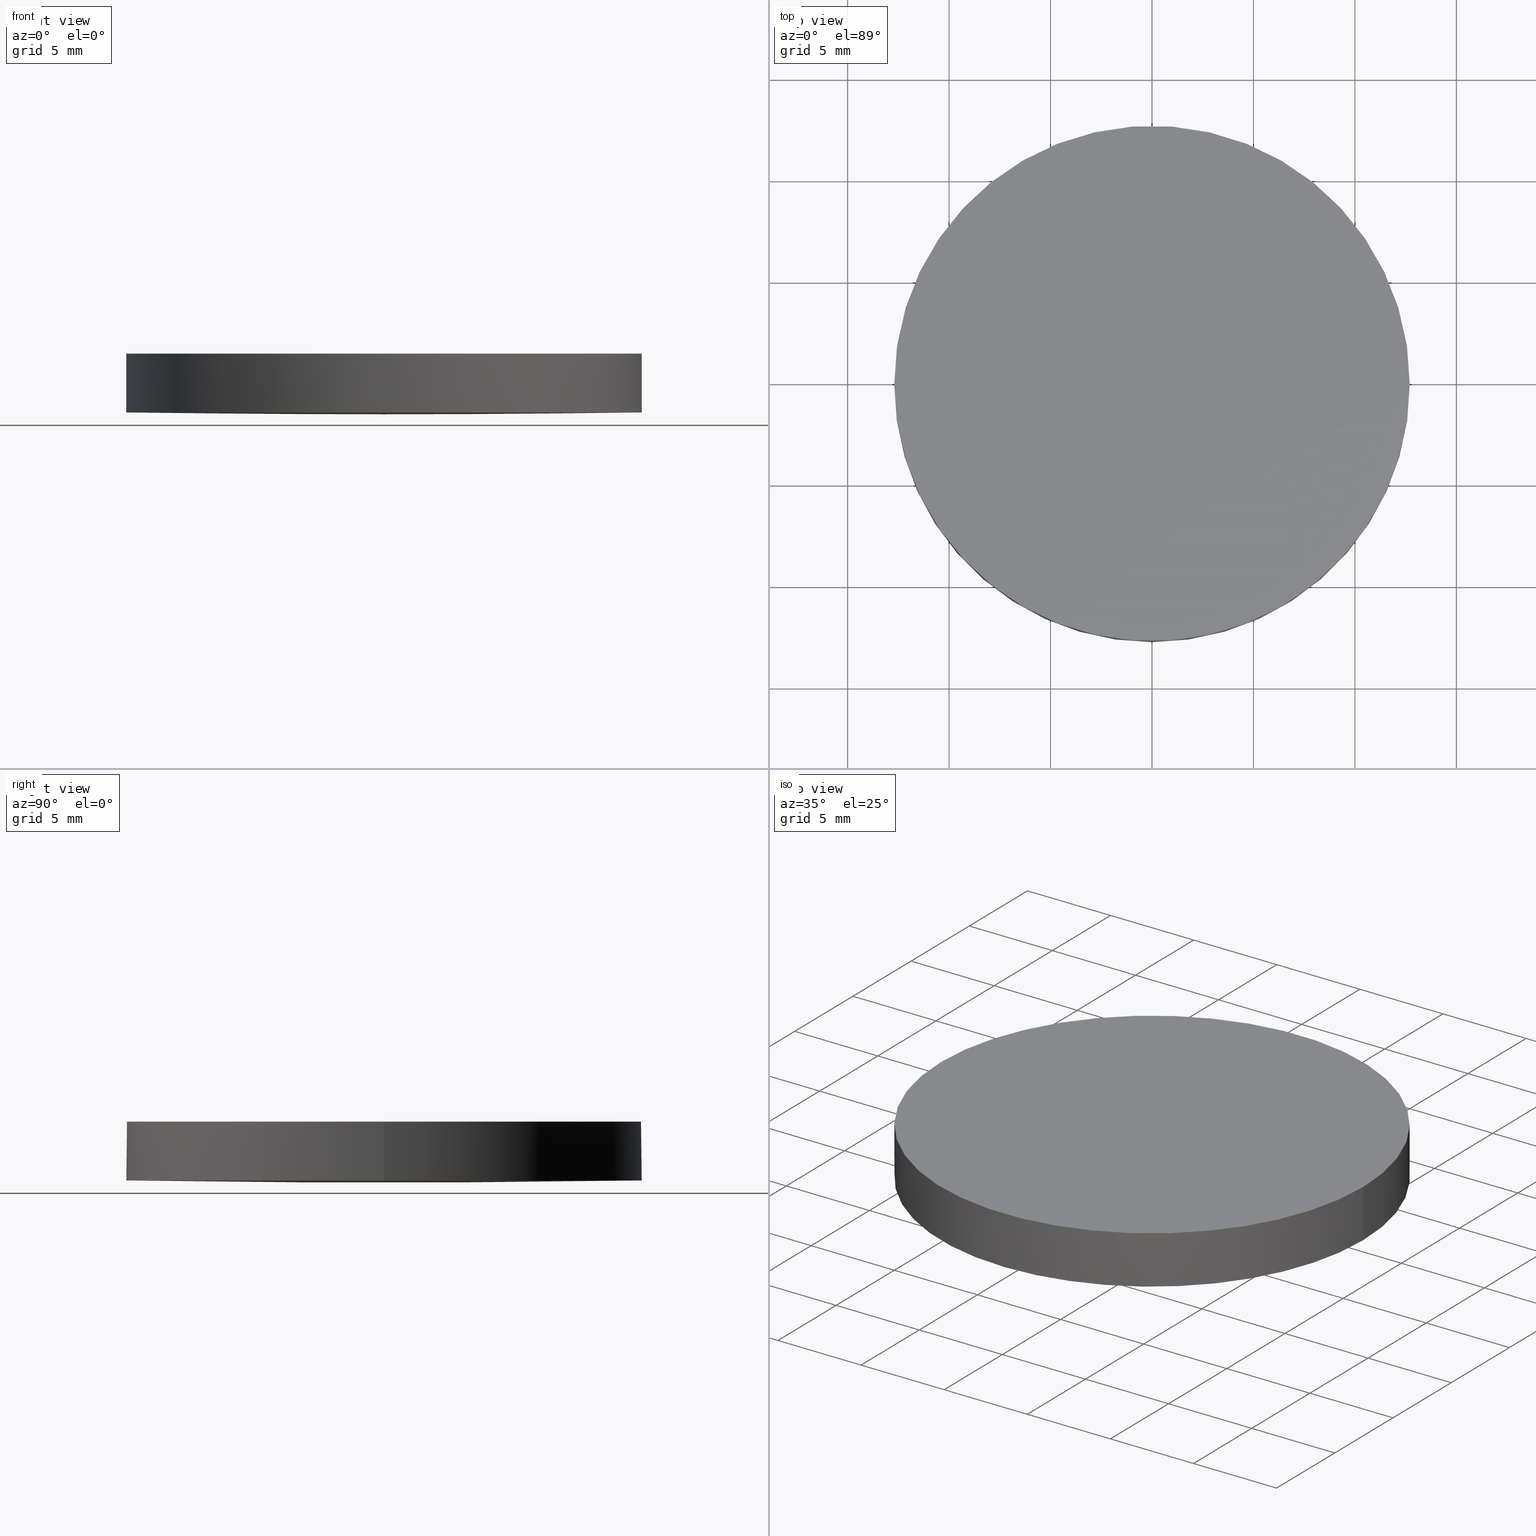
[diagram: canonical four-view strip — front | top / right | iso, engineering-drawing reading convention]
A machine part, canonical four-view strip (front | top / right | iso — engineering-drawing reading convention). The complete STEP part file that produces these views, byte-faithful:
ISO-10303-21;
HEADER;
FILE_DESCRIPTION (( 'STEP AP203' ),
    '1' );
FILE_NAME ('110-0267E BK7 pl-cx 25.4 F1500.STEP',
    '2018-12-21T06:45:29',
    ( '' ),
    ( '' ),
    'SwSTEP 2.0',
    'SolidWorks 2017',
    '' );
FILE_SCHEMA (( 'CONFIG_CONTROL_DESIGN' ));
ENDSEC;

DATA;
#1 = VECTOR ( 'NONE', #207, 1000.000000000000000 ) ;
#2 = CARTESIAN_POINT ( 'NONE',  ( 4.996003610813200500E-016, 2.442490654175340100E-015, 0.1036637186161520100 ) ) ;
#3 = CARTESIAN_POINT ( 'NONE',  ( -12.69999999999999900, 3.997792089092478900E-015, 3.000000000000000000 ) ) ;
#4 = AXIS2_PLACEMENT_3D ( 'NONE', #105, #234, #82 ) ;
#5 = CARTESIAN_POINT ( 'NONE',  ( -6.175615574477432200E-013, 4.284518518352576200, -0.03539205925734099200 ) ) ;
#6 = DIRECTION ( 'NONE',  ( 1.000000000000000000, 0.0000000000000000000, 0.0000000000000000000 ) ) ;
#7 = DIRECTION ( 'NONE',  ( 0.0000000000000000000, 0.0000000000000000000, 1.000000000000000000 ) ) ;
#8 = CALENDAR_DATE ( 2018, 21, 12 ) ;
#9 = ORIENTED_EDGE ( 'NONE', *, *, #86, .F. ) ;
#10 = CARTESIAN_POINT ( 'NONE',  ( 12.69999999999999900, 2.442490654175340100E-015, 0.1036637186161520100 ) ) ;
#11 = AXIS2_PLACEMENT_3D ( 'NONE', #154, #41, #174 ) ;
#12 = DIRECTION ( 'NONE',  ( -0.0000000000000000000, -0.0000000000000000000, -1.000000000000000000 ) ) ;
#13 = DIRECTION ( 'NONE',  ( -2.988028379211528500E-016, -1.000000000000000000, 5.708087530206460600E-016 ) ) ;
#14 = DATE_AND_TIME ( #83, #183 ) ;
#15 = MECHANICAL_CONTEXT ( 'NONE', #232, 'mechanical' ) ;
#16 = ORIENTED_EDGE ( 'NONE', *, *, #113, .T. ) ;
#17 = APPROVAL ( #32, 'UNSPECIFIED' ) ;
#18 = EDGE_CURVE ( 'NONE', #194, #140, #191, .T. ) ;
#19 = CIRCLE ( 'NONE', #221, 12.69999999999999900 ) ;
#20 = DIRECTION ( 'NONE',  ( -0.0000000000000000000, -0.0000000000000000000, -1.000000000000000000 ) ) ;
#21 = CARTESIAN_POINT ( 'NONE',  ( -12.77677437270932800, 4.284518518352578900, 0.06952410036593643900 ) ) ;
#22 = EDGE_CURVE ( 'NONE', #67, #57, #19, .T. ) ;
#23 = CYLINDRICAL_SURFACE ( 'NONE', #11, 12.69999999999999900 ) ;
#24 = ORIENTED_EDGE ( 'NONE', *, *, #18, .F. ) ;
#25 = DIRECTION ( 'NONE',  ( 1.000000000000000000, 0.0000000000000000000, 0.0000000000000000000 ) ) ;
#26 = PLANE ( 'NONE',  #198 ) ;
#27 = CARTESIAN_POINT ( 'NONE',  ( -4.270027771401412000E-013, 4.284518518352576200, -0.03539205925730160000 ) ) ;
#28 = CARTESIAN_POINT ( 'NONE',  ( 8.518184611386091700, -4.284518518352525600, -0.0004192200360987136900 ) ) ;
#29 = CARTESIAN_POINT ( 'NONE',  ( 0.0000000000000000000, 0.0000000000000000000, 0.0000000000000000000 ) ) ;
#30 = DATE_AND_TIME ( #8, #54 ) ;
#31 = PERSON_AND_ORGANIZATION_ROLE ( 'creator' ) ;
#32 = APPROVAL_STATUS ( 'not_yet_approved' ) ;
#33 = ORIENTED_EDGE ( 'NONE', *, *, #22, .F. ) ;
#34 = AXIS2_PLACEMENT_3D ( 'NONE', #77, #228, #178 ) ;
#35 = DATE_AND_TIME ( #74, #226 ) ;
#36 = FACE_OUTER_BOUND ( 'NONE', #216, .T. ) ;
#37 = CC_DESIGN_APPROVAL ( #17, ( #61 ) ) ;
#38 = ORIENTED_EDGE ( 'NONE', *, *, #190, .T. ) ;
#39 = CARTESIAN_POINT ( 'NONE',  ( -8.516634782020315000, -12.85238621723088000, 0.1411329946494032100 ) ) ;
#40 = APPROVAL_PERSON_ORGANIZATION ( #87, #17, #127 ) ;
#41 = DIRECTION ( 'NONE',  ( 0.0000000000000000000, 0.0000000000000000000, 1.000000000000000000 ) ) ;
#42 = CARTESIAN_POINT ( 'NONE',  ( 4.259164099128814700, -4.284518518352523800, -0.03539205925730210700 ) ) ;
#43 = APPROVAL_DATE_TIME ( #98, #17 ) ;
#44 = CARTESIAN_POINT ( 'NONE',  ( 8.516634782019604400, -12.85238621723088300, 0.1411329946493914700 ) ) ;
#45 = CARTESIAN_POINT ( 'NONE',  ( 4.259164099128817300, 4.284518518352576200, -0.03539205925730270300 ) ) ;
#46 = PERSON_AND_ORGANIZATION ( #182, #201 ) ;
#47 = AXIS2_PLACEMENT_3D ( 'NONE', #29, #187, #212 ) ;
#48 = PRODUCT ( '110-0267E BK7 pl-cx 25.4 F1500', '110-0267E BK7 pl-cx 25.4 F1500', '', ( #15 ) ) ;
#49 = FACE_OUTER_BOUND ( 'NONE', #158, .T. ) ;
#50 = ORIENTED_EDGE ( 'NONE', *, *, #149, .F. ) ;
#51 = DATE_AND_TIME ( #167, #173 ) ;
#52 = CIRCLE ( 'NONE', #128, 778.0000000000000000 ) ;
#53 =( GEOMETRIC_REPRESENTATION_CONTEXT ( 3 ) GLOBAL_UNCERTAINTY_ASSIGNED_CONTEXT ( ( #185 ) ) GLOBAL_UNIT_ASSIGNED_CONTEXT ( ( #102, #63, #200 ) ) REPRESENTATION_CONTEXT ( 'NONE', 'WORKASPACE' ) );
#54 = LOCAL_TIME ( 8, 45, 29.00000000000000000, #64 ) ;
#55 = ORIENTED_EDGE ( 'NONE', *, *, #113, .F. ) ;
#56 = CARTESIAN_POINT ( 'NONE',  ( -8.518184611386796900, 4.284518518352578900, -0.0004192200360875735100 ) ) ;
#57 = VERTEX_POINT ( 'NONE', #94 ) ;
#58 = CARTESIAN_POINT ( 'NONE',  ( 0.0000000000000000000, 26.11199999999999800, 3.000000000000000000 ) ) ;
#59 = CC_DESIGN_PERSON_AND_ORGANIZATION_ASSIGNMENT ( #170, #31, ( #61 ) ) ;
#60 = CARTESIAN_POINT ( 'NONE',  ( -4.244522995091619500E-013, 12.70000000000398900, 0.1036637186161473300 ) ) ;
#61 = PRODUCT_DEFINITION ( 'UNKNOWN', '', #139, #180 ) ;
#62 = PERSON_AND_ORGANIZATION_ROLE ( 'classification_officer' ) ;
#63 =( NAMED_UNIT ( * ) PLANE_ANGLE_UNIT ( ) SI_UNIT ( $, .RADIAN. ) );
#64 = COORDINATED_UNIVERSAL_TIME_OFFSET ( 2, 0, .AHEAD. ) ;
#65 = APPROVAL_ROLE ( '' ) ;
#66 = ORIENTED_EDGE ( 'NONE', *, *, #115, .T. ) ;
#67 = VERTEX_POINT ( 'NONE', #3 ) ;
#68 = MANIFOLD_SOLID_BREP ( 'Imported1', #222 ) ;
#69 = CC_DESIGN_DATE_AND_TIME_ASSIGNMENT ( #51, #163, ( #61 ) ) ;
#70 = COORDINATED_UNIVERSAL_TIME_OFFSET ( 2, 0, .AHEAD. ) ;
#71 = CARTESIAN_POINT ( 'NONE',  ( -4.258389171384096400, -12.85238621723088000, 0.1061665185132137200 ) ) ;
#72 = PRODUCT_RELATED_PRODUCT_CATEGORY ( 'detail', '', ( #48 ) ) ;
#73 = CARTESIAN_POINT ( 'NONE',  ( 12.69999999999999900, 2.442490654175340100E-015, 0.1036637186161520100 ) ) ;
#74 = CALENDAR_DATE ( 2018, 21, 12 ) ;
#75 = FACE_OUTER_BOUND ( 'NONE', #208, .T. ) ;
#76 = DIRECTION ( 'NONE',  ( -0.0000000000000000000, -0.0000000000000000000, -1.000000000000000000 ) ) ;
#77 = CARTESIAN_POINT ( 'NONE',  ( 4.996003610813200500E-016, 2.442490654175340100E-015, 3.000000000000000000 ) ) ;
#78 = CARTESIAN_POINT ( 'NONE',  ( -12.69999999999999900, 3.997792089092478900E-015, 0.1036637186161520100 ) ) ;
#79 = CIRCLE ( 'NONE', #4, 12.69999999999999900 ) ;
#80 = CARTESIAN_POINT ( 'NONE',  ( -4.258389171384089300, 12.85238621723093600, 0.1061665185132137400 ) ) ;
#81 = ADVANCED_FACE ( 'NONE', ( #75 ), #129, .T. ) ;
#82 = DIRECTION ( 'NONE',  ( 1.000000000000000000, 0.0000000000000000000, 0.0000000000000000000 ) ) ;
#83 = CALENDAR_DATE ( 2018, 21, 12 ) ;
#84 = ORIENTED_EDGE ( 'NONE', *, *, #86, .T. ) ;
#85 = ORIENTED_EDGE ( 'NONE', *, *, #190, .F. ) ;
#86 = EDGE_CURVE ( 'NONE', #220, #57, #179, .T. ) ;
#87 = PERSON_AND_ORGANIZATION ( #182, #201 ) ;
#88 = CARTESIAN_POINT ( 'NONE',  ( -12.77677437270933000, -4.284518518352518500, 0.06952410036593703600 ) ) ;
#89 = AXIS2_PLACEMENT_3D ( 'NONE', #116, #172, #156 ) ;
#90 = CARTESIAN_POINT ( 'NONE',  ( -4.259164099129693100, -4.284518518352522100, -0.03539205925733825800 ) ) ;
#91 = SHAPE_DEFINITION_REPRESENTATION ( #148, #137 ) ;
#92 = DIRECTION ( 'NONE',  ( 1.000000000000000000, 0.0000000000000000000, 0.0000000000000000000 ) ) ;
#93 = CC_DESIGN_PERSON_AND_ORGANIZATION_ASSIGNMENT ( #155, #62, ( #205 ) ) ;
#94 = CARTESIAN_POINT ( 'NONE',  ( 12.69999999999999900, 2.442490654175340100E-015, 3.000000000000000000 ) ) ;
#95 = ADVANCED_FACE ( 'NONE', ( #36 ), #23, .T. ) ;
#96 = ADVANCED_FACE ( 'NONE', ( #143 ), #130, .T. ) ;
#97 = CARTESIAN_POINT ( 'NONE',  ( 12.77677437270879500, 4.284518518352572700, 0.06952410036592707200 ) ) ;
#98 = DATE_AND_TIME ( #233, #235 ) ;
#99 = CARTESIAN_POINT ( 'NONE',  ( 8.516634782019611500, 12.85238621723093300, 0.1411329946493914700 ) ) ;
#100 = DIRECTION ( 'NONE',  ( 0.0000000000000000000, 0.0000000000000000000, 1.000000000000000000 ) ) ;
#101 = PERSON_AND_ORGANIZATION ( #182, #201 ) ;
#102 =( LENGTH_UNIT ( ) NAMED_UNIT ( * ) SI_UNIT ( .MILLI., .METRE. ) );
#103 = CIRCLE ( 'NONE', #109, 12.69999999999999900 ) ;
#104 = AXIS2_PLACEMENT_3D ( 'NONE', #2, #20, #92 ) ;
#105 = CARTESIAN_POINT ( 'NONE',  ( 4.996003610813200500E-016, 2.442490654175340100E-015, 0.1036637186161520100 ) ) ;
#106 = APPLICATION_PROTOCOL_DEFINITION ( 'international standard', 'config_control_design', 1994, #186 ) ;
#107 = APPROVAL_DATE_TIME ( #14, #153 ) ;
#108 = LINE ( 'NONE', #195, #229 ) ;
#109 = AXIS2_PLACEMENT_3D ( 'NONE', #121, #12, #177 ) ;
#110 = COORDINATED_UNIVERSAL_TIME_OFFSET ( 2, 0, .AHEAD. ) ;
#111 = ORIENTED_EDGE ( 'NONE', *, *, #18, .T. ) ;
#112 = CC_DESIGN_DATE_AND_TIME_ASSIGNMENT ( #35, #162, ( #205 ) ) ;
#113 = EDGE_CURVE ( 'NONE', #194, #67, #108, .T. ) ;
#114 = CARTESIAN_POINT ( 'NONE',  ( -4.259164099129691300, 4.284518518352578000, -0.03539205925733885500 ) ) ;
#115 = EDGE_CURVE ( 'NONE', #140, #220, #103, .T. ) ;
#116 = CARTESIAN_POINT ( 'NONE',  ( 4.996003610813200500E-016, 2.442490654175340100E-015, 0.1036637186161520100 ) ) ;
#117 = DIRECTION ( 'NONE',  ( -0.0000000000000000000, -0.0000000000000000000, -1.000000000000000000 ) ) ;
#118 = CARTESIAN_POINT ( 'NONE',  ( 4.258389171383220700, 12.85238621723093300, 0.1061665185132499000 ) ) ;
#119 = DIRECTION ( 'NONE',  ( 1.000000000000000000, 0.0000000000000000000, -0.0000000000000000000 ) ) ;
#120 = CARTESIAN_POINT ( 'NONE',  ( 4.258389171383212700, -12.85238621723088300, 0.1061665185132499000 ) ) ;
#121 = CARTESIAN_POINT ( 'NONE',  ( 4.996003610813200500E-016, 2.442490654175340100E-015, 0.1036637186161520100 ) ) ;
#122 = PERSON_AND_ORGANIZATION_ROLE ( 'design_supplier' ) ;
#123 = APPROVAL ( #144, 'UNSPECIFIED' ) ;
#124 = PERSON_AND_ORGANIZATION_ROLE ( 'creator' ) ;
#125 = ORIENTED_EDGE ( 'NONE', *, *, #231, .T. ) ;
#126 = VERTEX_POINT ( 'NONE', #204 ) ;
#127 = APPROVAL_ROLE ( '' ) ;
#128 = AXIS2_PLACEMENT_3D ( 'NONE', #165, #211, #13 ) ;
#129 = CYLINDRICAL_SURFACE ( 'NONE', #89, 12.69999999999999900 ) ;
#130 =( BOUNDED_SURFACE ( )  B_SPLINE_SURFACE ( 3, 3, ( 
 ( #193, #39, #71, #224 ),
 ( #88, #206, #90, #132 ),
 ( #21, #56, #114, #5 ),
 ( #133, #159, #80, #196 ) ),
 .UNSPECIFIED., .F., .F., .T. ) 
 B_SPLINE_SURFACE_WITH_KNOTS ( ( 4, 4 ),
 ( 4, 4 ),
 ( 0.0000000000000000000, 1.000000000000000000 ),
 ( 0.0000000000000000000, 1.000000000000000000 ),
 .UNSPECIFIED. ) 
 GEOMETRIC_REPRESENTATION_ITEM ( )  RATIONAL_B_SPLINE_SURFACE ( (
 ( 1.000000000000000000, 0.9999775250309488300, 0.9999775250309488300, 1.000000000000000000),
 ( 0.9999090261195259200, 0.9998865531951098800, 0.9998865531951098800, 0.9999090261195259200),
 ( 0.9999090261195259200, 0.9998865531951098800, 0.9998865531951098800, 0.9999090261195259200),
 ( 1.000000000000000000, 0.9999775250309488300, 0.9999775250309488300, 1.000000000000000000) ) ) 
 REPRESENTATION_ITEM ( '' )  SURFACE ( )  );
#131 = ORIENTED_EDGE ( 'NONE', *, *, #169, .F. ) ;
#132 = CARTESIAN_POINT ( 'NONE',  ( -6.192962809237201300E-013, -4.284518518352522100, -0.03539205925734039600 ) ) ;
#133 = CARTESIAN_POINT ( 'NONE',  ( -12.77444972009434900, 12.85238621723093600, 0.2110635893103340900 ) ) ;
#134 = CC_DESIGN_SECURITY_CLASSIFICATION ( #205, ( #139 ) ) ;
#135 = ADVANCED_FACE ( 'NONE', ( #171 ), #26, .T. ) ;
#136 = EDGE_LOOP ( 'NONE', ( #188, #168, #111 ) ) ;
#137 = ADVANCED_BREP_SHAPE_REPRESENTATION ( '110-0267E BK7 pl-cx 25.4 F1500', ( #68, #47 ), #53 ) ;
#138 = CARTESIAN_POINT ( 'NONE',  ( 12.77444972009382200, 12.85238621723092900, 0.2110635893103247100 ) ) ;
#139 = PRODUCT_DEFINITION_FORMATION_WITH_SPECIFIED_SOURCE ( 'ANY', '', #48, .NOT_KNOWN. ) ;
#140 = VERTEX_POINT ( 'NONE', #60 ) ;
#141 = CARTESIAN_POINT ( 'NONE',  ( -4.295632297249600500E-013, -4.284518518352522100, -0.03539205925730100300 ) ) ;
#142 = CARTESIAN_POINT ( 'NONE',  ( 12.77444972009381500, -12.85238621723088300, 0.2110635893103247100 ) ) ;
#143 = FACE_OUTER_BOUND ( 'NONE', #136, .T. ) ;
#144 = APPROVAL_STATUS ( 'not_yet_approved' ) ;
#145 = PERSON_AND_ORGANIZATION_ROLE ( 'design_owner' ) ;
#146 = CIRCLE ( 'NONE', #213, 12.69999999999999900 ) ;
#147 = CC_DESIGN_APPROVAL ( #123, ( #205 ) ) ;
#148 = PRODUCT_DEFINITION_SHAPE ( 'NONE', 'NONE',  #61 ) ;
#149 = EDGE_CURVE ( 'NONE', #126, #194, #146, .T. ) ;
#150 = PERSON_AND_ORGANIZATION ( #182, #201 ) ;
#151 = APPROVAL_DATE_TIME ( #30, #123 ) ;
#152 = PERSON_AND_ORGANIZATION ( #182, #201 ) ;
#153 = APPROVAL ( #218, 'UNSPECIFIED' ) ;
#154 = CARTESIAN_POINT ( 'NONE',  ( 4.996003610813200500E-016, 2.442490654175340100E-015, 0.1036637186161520100 ) ) ;
#155 = PERSON_AND_ORGANIZATION ( #182, #201 ) ;
#156 = DIRECTION ( 'NONE',  ( 1.000000000000000000, 0.0000000000000000000, 0.0000000000000000000 ) ) ;
#157 = PERSON_AND_ORGANIZATION ( #182, #201 ) ;
#158 = EDGE_LOOP ( 'NONE', ( #38, #125, #66 ) ) ;
#159 = CARTESIAN_POINT ( 'NONE',  ( -8.516634782020309700, 12.85238621723093600, 0.1411329946494032100 ) ) ;
#160 = CARTESIAN_POINT ( 'NONE',  ( 12.77677437270879300, -4.284518518352525600, 0.06952410036592766900 ) ) ;
#161 = CARTESIAN_POINT ( 'NONE',  ( 8.518184611386091700, 4.284518518352574500, -0.0004192200360992964500 ) ) ;
#162 = DATE_TIME_ROLE ( 'classification_date' ) ;
#163 = DATE_TIME_ROLE ( 'creation_date' ) ;
#164 = CIRCLE ( 'NONE', #34, 12.69999999999999900 ) ;
#165 = CARTESIAN_POINT ( 'NONE',  ( -2.273736754432320100E-013, 0.0000000000000000000, 778.0000000000000000 ) ) ;
#166 = CC_DESIGN_PERSON_AND_ORGANIZATION_ASSIGNMENT ( #152, #145, ( #48 ) ) ;
#167 = CALENDAR_DATE ( 2018, 21, 12 ) ;
#168 = ORIENTED_EDGE ( 'NONE', *, *, #149, .T. ) ;
#169 = EDGE_CURVE ( 'NONE', #57, #67, #164, .T. ) ;
#170 = PERSON_AND_ORGANIZATION ( #182, #201 ) ;
#171 = FACE_OUTER_BOUND ( 'NONE', #223, .T. ) ;
#172 = DIRECTION ( 'NONE',  ( 0.0000000000000000000, 0.0000000000000000000, 1.000000000000000000 ) ) ;
#173 = LOCAL_TIME ( 8, 45, 29.00000000000000000, #70 ) ;
#174 = DIRECTION ( 'NONE',  ( 1.000000000000000000, 0.0000000000000000000, 0.0000000000000000000 ) ) ;
#175 = ADVANCED_FACE ( 'NONE', ( #49 ), #230, .T. ) ;
#176 = ORIENTED_EDGE ( 'NONE', *, *, #22, .T. ) ;
#177 = DIRECTION ( 'NONE',  ( 1.000000000000000000, -8.881784197001252300E-016, 0.0000000000000000000 ) ) ;
#178 = DIRECTION ( 'NONE',  ( 1.000000000000000000, 0.0000000000000000000, 0.0000000000000000000 ) ) ;
#179 = LINE ( 'NONE', #73, #1 ) ;
#180 = DESIGN_CONTEXT ( 'detailed design', #186, 'design' ) ;
#181 = CARTESIAN_POINT ( 'NONE',  ( -4.244061197858275200E-013, 12.85238621723093300, 0.1061665185132509800 ) ) ;
#182 = PERSON ( 'UNSPECIFIED', 'UNSPECIFIED', 'UNSPECIFIED', ('UNSPECIFIED'), ('UNSPECIFIED'), ('UNSPECIFIED') ) ;
#183 = LOCAL_TIME ( 8, 45, 29.00000000000000000, #215 ) ;
#184 = ORIENTED_EDGE ( 'NONE', *, *, #169, .T. ) ;
#185 = UNCERTAINTY_MEASURE_WITH_UNIT (LENGTH_MEASURE( 1.000000000000000100E-005 ), #102, 'distance_accuracy_value', 'NONE');
#186 = APPLICATION_CONTEXT ( 'configuration controlled 3d designs of mechanical parts and assemblies' ) ;
#187 = DIRECTION ( 'NONE',  ( 0.0000000000000000000, 0.0000000000000000000, 1.000000000000000000 ) ) ;
#188 = ORIENTED_EDGE ( 'NONE', *, *, #231, .F. ) ;
#189 = CC_DESIGN_APPROVAL ( #153, ( #139 ) ) ;
#190 = EDGE_CURVE ( 'NONE', #220, #126, #79, .T. ) ;
#191 = CIRCLE ( 'NONE', #104, 12.69999999999999900 ) ;
#192 = COORDINATED_UNIVERSAL_TIME_OFFSET ( 2, 0, .AHEAD. ) ;
#193 = CARTESIAN_POINT ( 'NONE',  ( -12.77444972009435600, -12.85238621723087600, 0.2110635893103340900 ) ) ;
#194 = VERTEX_POINT ( 'NONE', #78 ) ;
#195 = CARTESIAN_POINT ( 'NONE',  ( -12.69999999999999900, 3.997792089092478900E-015, 0.1036637186161520100 ) ) ;
#196 = CARTESIAN_POINT ( 'NONE',  ( -6.140921104957897100E-013, 12.85238621723093300, 0.1061665185132116100 ) ) ;
#197 = CC_DESIGN_PERSON_AND_ORGANIZATION_ASSIGNMENT ( #46, #124, ( #139 ) ) ;
#198 = AXIS2_PLACEMENT_3D ( 'NONE', #58, #7, #119 ) ;
#199 = SECURITY_CLASSIFICATION_LEVEL ( 'unclassified' ) ;
#200 =( NAMED_UNIT ( * ) SI_UNIT ( $, .STERADIAN. ) SOLID_ANGLE_UNIT ( ) );
#201 = ORGANIZATION ( 'UNSPECIFIED', 'UNSPECIFIED', '' ) ;
#202 = ORIENTED_EDGE ( 'NONE', *, *, #115, .F. ) ;
#203 = APPROVAL_PERSON_ORGANIZATION ( #157, #153, #217 ) ;
#204 = CARTESIAN_POINT ( 'NONE',  ( -4.320418915923616000E-013, -12.70000000000398900, 0.1036637186161473300 ) ) ;
#205 = SECURITY_CLASSIFICATION ( '', '', #199 ) ;
#206 = CARTESIAN_POINT ( 'NONE',  ( -8.518184611386798700, -4.284518518352521200, -0.0004192200360869771400 ) ) ;
#207 = DIRECTION ( 'NONE',  ( 0.0000000000000000000, 0.0000000000000000000, 1.000000000000000000 ) ) ;
#208 = EDGE_LOOP ( 'NONE', ( #24, #16, #176, #9, #202 ) ) ;
#209 = CARTESIAN_POINT ( 'NONE',  ( 4.996003610813200500E-016, 2.442490654175340100E-015, 0.1036637186161520100 ) ) ;
#210 = CARTESIAN_POINT ( 'NONE',  ( -4.320867787373621400E-013, -12.85238621723088000, 0.1061665185132509800 ) ) ;
#211 = DIRECTION ( 'NONE',  ( 1.000000000000000000, -2.988028379211529900E-016, -2.582264637827899900E-016 ) ) ;
#212 = DIRECTION ( 'NONE',  ( 1.000000000000000000, 0.0000000000000000000, 0.0000000000000000000 ) ) ;
#213 = AXIS2_PLACEMENT_3D ( 'NONE', #209, #76, #25 ) ;
#214 = APPLICATION_PROTOCOL_DEFINITION ( 'international standard', 'config_control_design', 1994, #232 ) ;
#215 = COORDINATED_UNIVERSAL_TIME_OFFSET ( 2, 0, .AHEAD. ) ;
#216 = EDGE_LOOP ( 'NONE', ( #55, #50, #85, #84, #184 ) ) ;
#217 = APPROVAL_ROLE ( '' ) ;
#218 = APPROVAL_STATUS ( 'not_yet_approved' ) ;
#219 = APPROVAL_PERSON_ORGANIZATION ( #101, #123, #65 ) ;
#220 = VERTEX_POINT ( 'NONE', #10 ) ;
#221 = AXIS2_PLACEMENT_3D ( 'NONE', #227, #117, #6 ) ;
#222 = CLOSED_SHELL ( 'NONE', ( #175, #81, #96, #95, #135 ) ) ;
#223 = EDGE_LOOP ( 'NONE', ( #131, #33 ) ) ;
#224 = CARTESIAN_POINT ( 'NONE',  ( -6.210310043996969400E-013, -12.85238621723088000, 0.1061665185132116100 ) ) ;
#225 = CC_DESIGN_PERSON_AND_ORGANIZATION_ASSIGNMENT ( #150, #122, ( #139 ) ) ;
#226 = LOCAL_TIME ( 8, 45, 29.00000000000000000, #110 ) ;
#227 = CARTESIAN_POINT ( 'NONE',  ( 4.996003610813200500E-016, 2.442490654175340100E-015, 3.000000000000000000 ) ) ;
#228 = DIRECTION ( 'NONE',  ( -0.0000000000000000000, -0.0000000000000000000, -1.000000000000000000 ) ) ;
#229 = VECTOR ( 'NONE', #100, 1000.000000000000000 ) ;
#230 =( BOUNDED_SURFACE ( )  B_SPLINE_SURFACE ( 3, 3, ( 
 ( #210, #120, #44, #142 ),
 ( #141, #42, #28, #160 ),
 ( #27, #45, #161, #97 ),
 ( #181, #118, #99, #138 ) ),
 .UNSPECIFIED., .F., .F., .F. ) 
 B_SPLINE_SURFACE_WITH_KNOTS ( ( 4, 4 ),
 ( 4, 4 ),
 ( 0.0000000000000000000, 1.000000000000000000 ),
 ( 0.0000000000000000000, 1.000000000000000000 ),
 .UNSPECIFIED. ) 
 GEOMETRIC_REPRESENTATION_ITEM ( )  RATIONAL_B_SPLINE_SURFACE ( (
 ( 1.000000000000000000, 0.9999775250309488300, 0.9999775250309488300, 1.000000000000000000),
 ( 0.9999090261195259200, 0.9998865531951098800, 0.9998865531951098800, 0.9999090261195259200),
 ( 0.9999090261195259200, 0.9998865531951098800, 0.9998865531951098800, 0.9999090261195259200),
 ( 1.000000000000000000, 0.9999775250309488300, 0.9999775250309488300, 1.000000000000000000) ) ) 
 REPRESENTATION_ITEM ( '' )  SURFACE ( )  );
#231 = EDGE_CURVE ( 'NONE', #126, #140, #52, .T. ) ;
#232 = APPLICATION_CONTEXT ( 'configuration controlled 3d designs of mechanical parts and assemblies' ) ;
#233 = CALENDAR_DATE ( 2018, 21, 12 ) ;
#234 = DIRECTION ( 'NONE',  ( -0.0000000000000000000, -0.0000000000000000000, -1.000000000000000000 ) ) ;
#235 = LOCAL_TIME ( 8, 45, 29.00000000000000000, #192 ) ;
ENDSEC;
END-ISO-10303-21;
